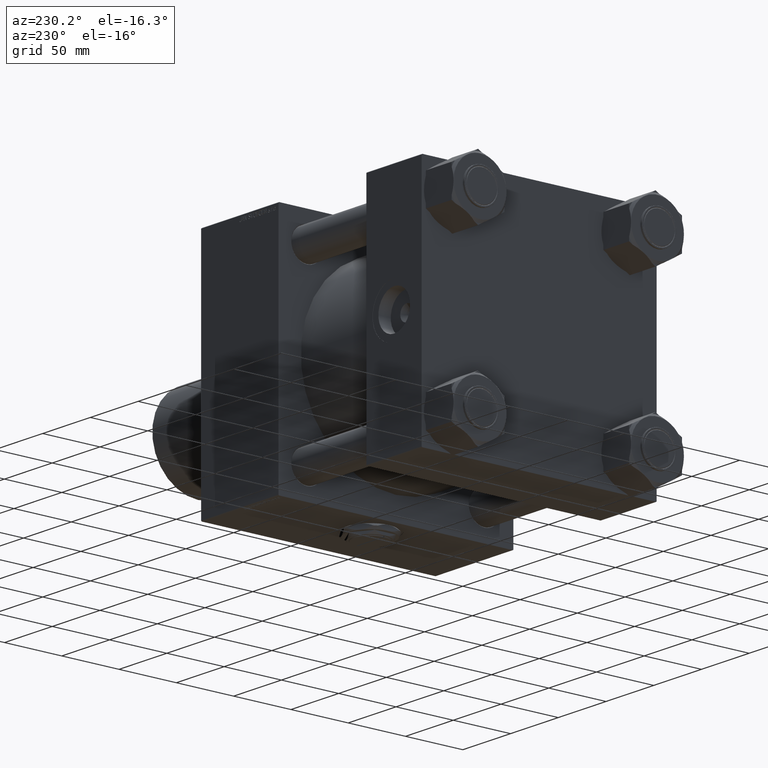
[diagram: clean part render]
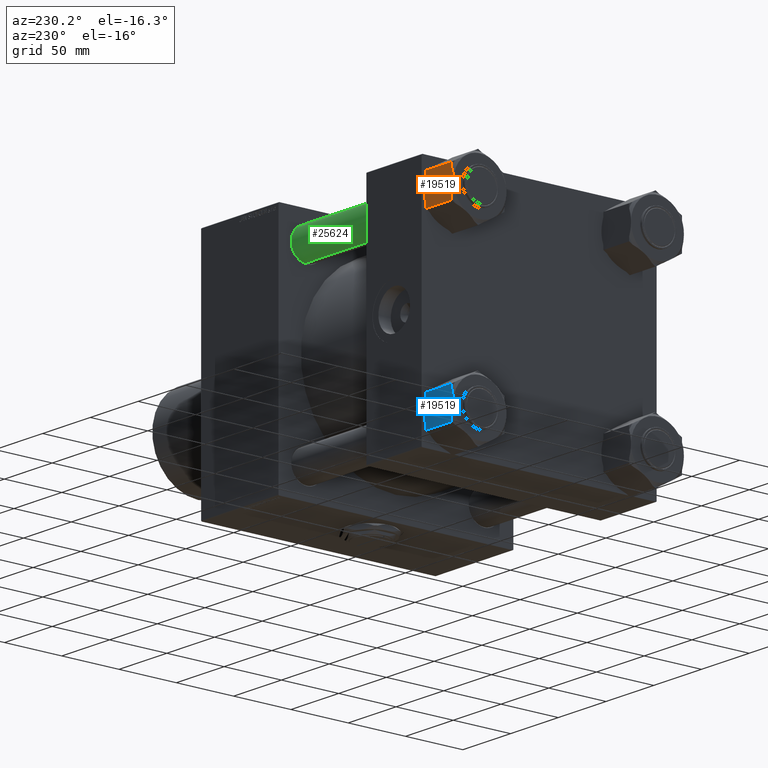
[diagram: same view with three faces highlighted in distinct colors, each labeled with its STEP entity id]
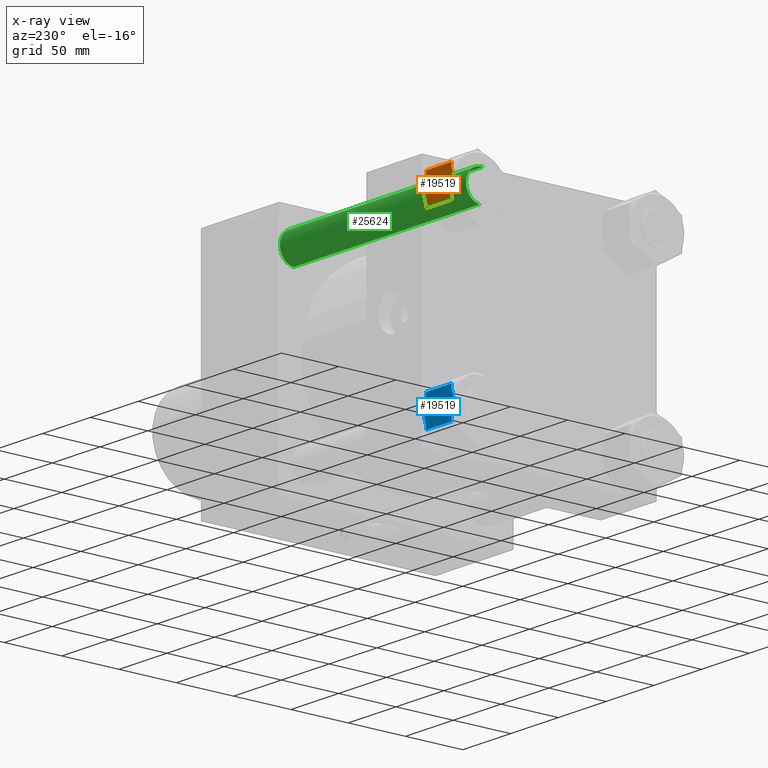
[diagram: x-ray of the same camera — body ghosted, the three highlighted faces saturated]
A machine part, auxiliary view with three faces highlighted in distinct colors.
The next image is the same camera in x-ray (body ghosted, the three faces saturated) — at least one of them is partly hidden behind the body in this view.
Their STEP definitions:

[orange] entity #19519 — the highlighted planar face has unit normal (0, -1, -0).
#576 = B_SPLINE_CURVE_WITH_KNOTS ( 'NONE', 3,
 ( #3452, #28605, #24027, #3717, #36391, #7463, #12014, #24303, #52742, #7196 ),
 .UNSPECIFIED., .F., .F.,
 ( 4, 2, 2, 2, 4 ),
 ( 0.04709422404877768031, 0.04834823400549315836, 0.04960224396220863641, 0.05211026387563959944, 0.05712630370250151163 ),
 .UNSPECIFIED. ) ;
#780 = EDGE_CURVE ( 'NONE', #37556, #4427, #33960, .T. ) ;
#2398 = CARTESIAN_POINT ( 'NONE',  ( -9.808893158505055609, 23.05359624874177271, -2.000000000000000000 ) ) ;
#2574 = CARTESIAN_POINT ( 'NONE',  ( 5.801497649255006550, 23.05359624874177271, -0.7053567131665720025 ) ) ;
#3359 = CARTESIAN_POINT ( 'NONE',  ( 9.024432966208889795, 23.05359624874177626, -1.692870989979337271 ) ) ;
#3452 = CARTESIAN_POINT ( 'NONE',  ( 0.000000000000000000, 23.05359624874177271, 0.000000000000000000 ) ) ;
#3629 = CARTESIAN_POINT ( 'NONE',  ( 9.808893158505055609, 23.05359624874177271, -2.000000000000000000 ) ) ;
#3717 = CARTESIAN_POINT ( 'NONE',  ( -1.693046291327859665, 23.05359624874176561, -0.05822588947894232619 ) ) ;
#4427 = VERTEX_POINT ( 'NONE', #51171 ) ;
#4522 = CARTESIAN_POINT ( 'NONE',  ( 13.31000000000000405, 23.05359624874177271, -31.00000000000000000 ) ) ;
#4757 = B_SPLINE_CURVE_WITH_KNOTS ( 'NONE', 3,
 ( #17545, #22057, #38179, #25562, #6017, #26097, #33886, #13516 ),
 .UNSPECIFIED., .F., .F.,
 ( 4, 2, 2, 4 ),
 ( 0.03704433557245612185, 0.03955680769153650800, 0.04206927981061689414, 0.04709422404877766644 ),
 .UNSPECIFIED. ) ;
#5069 = ORIENTED_EDGE ( 'NONE', *, *, #19174, .F. ) ;
#5133 = CARTESIAN_POINT ( 'NONE',  ( 0.4218342054646818662, 23.05359624874177271, -30.99999999999999645 ) ) ;
#6017 = CARTESIAN_POINT ( 'NONE',  ( -5.801497649255016320, 23.05359624874177271, -30.29464328683341989 ) ) ;
#7196 = CARTESIAN_POINT ( 'NONE',  ( -9.808893158505055609, 23.05359624874177271, -2.000000000000000000 ) ) ;
#7463 = CARTESIAN_POINT ( 'NONE',  ( -3.366747807636247813, 23.05359624874176561, -0.2297327368970412120 ) ) ;
#7648 = CARTESIAN_POINT ( 'NONE',  ( -13.30999999999999872, 23.05359624874177271, -28.99999999999999645 ) ) ;
#7890 = VERTEX_POINT ( 'NONE', #41000 ) ;
#8043 = VECTOR ( 'NONE', #43380, 1000.000000000000000 ) ;
#8102 = CARTESIAN_POINT ( 'NONE',  ( 1.693046291327858999, 23.05359624874176916, -30.94177411052105597 ) ) ;
#8176 = VERTEX_POINT ( 'NONE', #2398 ) ;
#8266 = DIRECTION ( 'NONE',  ( -0.000000000000000000, -0.000000000000000000, 1.000000000000000000 ) ) ;
#8875 = AXIS2_PLACEMENT_3D ( 'NONE', #30916, #18594, #35475 ) ;
#8986 = ORIENTED_EDGE ( 'NONE', *, *, #780, .F. ) ;
#9307 = CARTESIAN_POINT ( 'NONE',  ( -13.30999999999999872, 23.05359624874177271, -2.000000000000001776 ) ) ;
#9870 = VECTOR ( 'NONE', #8266, 1000.000000000000000 ) ;
#10158 = CARTESIAN_POINT ( 'NONE',  ( -13.30999999999999872, 23.05359624874177271, -2.000000000000001776 ) ) ;
#12014 = CARTESIAN_POINT ( 'NONE',  ( -4.192182187841015484, 23.05359624874176916, -0.3644771254818151562 ) ) ;
#12415 = CARTESIAN_POINT ( 'NONE',  ( 13.31000000000000227, 23.05359624874177271, -28.99999999999999645 ) ) ;
#12619 = CARTESIAN_POINT ( 'NONE',  ( 0.000000000000000000, 23.05359624874177271, 0.000000000000000000 ) ) ;
#13406 = CARTESIAN_POINT ( 'NONE',  ( -13.30999999999999872, 23.05359624874177271, -31.00000000000000000 ) ) ;
#13516 = CARTESIAN_POINT ( 'NONE',  ( 0.000000000000000000, 23.05359624874177271, -31.00000000000000000 ) ) ;
#14078 = VECTOR ( 'NONE', #51637, 1000.000000000000000 ) ;
#15171 = LINE ( 'NONE', #35284, #14078 ) ;
#16294 = LINE ( 'NONE', #4522, #9870 ) ;
#16766 = VERTEX_POINT ( 'NONE', #28671 ) ;
#17168 = CARTESIAN_POINT ( 'NONE',  ( 6.641506094493674794, 23.05359624874176916, -30.11551404775775254 ) ) ;
#17232 = ORIENTED_EDGE ( 'NONE', *, *, #35717, .F. ) ;
#17430 = VERTEX_POINT ( 'NONE', #31866 ) ;
#17545 = CARTESIAN_POINT ( 'NONE',  ( -9.808893158505068044, 23.05359624874177271, -28.99999999999999645 ) ) ;
#17949 = CARTESIAN_POINT ( 'NONE',  ( -13.30999999999999872, 23.05359624874177271, -28.99999999999999645 ) ) ;
#18594 = DIRECTION ( 'NONE',  ( 0.000000000000000000, -1.000000000000000000, 0.000000000000000000 ) ) ;
#18870 = CARTESIAN_POINT ( 'NONE',  ( 0.000000000000000000, 23.05359624874177271, 0.000000000000000000 ) ) ;
#19174 = EDGE_CURVE ( 'NONE', #8176, #37924, #31300, .T. ) ;
#19519 = ADVANCED_FACE ( 'NONE', ( #23117 ), #34423, .F. ) ;
#19564 = VECTOR ( 'NONE', #31637, 1000.000000000000000 ) ;
#19649 = CARTESIAN_POINT ( 'NONE',  ( 8.222377524857016340, 23.05359624874177271, -1.410427084452076096 ) ) ;
#19983 = EDGE_LOOP ( 'NONE', ( #17232, #39176, #5069, #30615, #48202, #26994, #28184, #41860, #8986, #25969 ) ) ;
#20118 = VERTEX_POINT ( 'NONE', #12619 ) ;
#20455 = EDGE_CURVE ( 'NONE', #17430, #16766, #15171, .T. ) ;
#21411 = LINE ( 'NONE', #17949, #44210 ) ;
#22057 = CARTESIAN_POINT ( 'NONE',  ( -9.024432966208907558, 23.05359624874177982, -29.30712901002065962 ) ) ;
#22134 = EDGE_CURVE ( 'NONE', #7890, #37556, #4757, .T. ) ;
#22150 = VECTOR ( 'NONE', #41823, 1000.000000000000000 ) ;
#22494 = EDGE_CURVE ( 'NONE', #37030, #17430, #16294, .T. ) ;
#23117 = FACE_OUTER_BOUND ( 'NONE', #19983, .T. ) ;
#24027 = CARTESIAN_POINT ( 'NONE',  ( -0.8470567002417573876, 23.05359624874177271, -0.01168982920650373826 ) ) ;
#24303 = CARTESIAN_POINT ( 'NONE',  ( -6.641506094493657919, 23.05359624874177271, -0.8844859522422369169 ) ) ;
#24755 = VERTEX_POINT ( 'NONE', #7648 ) ;
#25562 = CARTESIAN_POINT ( 'NONE',  ( -6.612214801278789800, 23.05359624874177626, -30.08273205772793446 ) ) ;
#25969 = ORIENTED_EDGE ( 'NONE', *, *, #22134, .F. ) ;
#26097 = CARTESIAN_POINT ( 'NONE',  ( -3.350210548520259124, 23.05359624874177271, -30.81266480856789158 ) ) ;
#26554 = CARTESIAN_POINT ( 'NONE',  ( -13.30999999999999872, 23.05359624874177271, -28.99999999999999645 ) ) ;
#26994 = ORIENTED_EDGE ( 'NONE', *, *, #20455, .F. ) ;
#28184 = ORIENTED_EDGE ( 'NONE', *, *, #22494, .F. ) ;
#28605 = CARTESIAN_POINT ( 'NONE',  ( -0.4218342054646835870, 23.05359624874177271, 4.573977915173220598E-17 ) ) ;
#28671 = CARTESIAN_POINT ( 'NONE',  ( 9.808893158505055609, 23.05359624874177271, -2.000000000000000000 ) ) ;
#30615 = ORIENTED_EDGE ( 'NONE', *, *, #37667, .F. ) ;
#30916 = CARTESIAN_POINT ( 'NONE',  ( -13.30999999999999872, 23.05359624874177271, -31.00000000000000000 ) ) ;
#30975 = EDGE_CURVE ( 'NONE', #4427, #37030, #21411, .T. ) ;
#31300 = LINE ( 'NONE', #10158, #8043 ) ;
#31637 = DIRECTION ( 'NONE',  ( 1.000000000000000000, 0.000000000000000000, 0.000000000000000000 ) ) ;
#31866 = CARTESIAN_POINT ( 'NONE',  ( 13.31000000000000227, 23.05359624874177271, -2.000000000000001776 ) ) ;
#32005 = CARTESIAN_POINT ( 'NONE',  ( 3.350210548520252907, 23.05359624874177626, -0.1873351914320967315 ) ) ;
#33518 = CARTESIAN_POINT ( 'NONE',  ( 2.113373616412101530, 23.05359624874177626, -30.90705919660666723 ) ) ;
#33782 = CARTESIAN_POINT ( 'NONE',  ( 0.8470567002417541680, 23.05359624874176916, -30.98831017079348982 ) ) ;
#33886 = CARTESIAN_POINT ( 'NONE',  ( -1.690332161126405497, 23.05359624874176561, -30.99999999999998934 ) ) ;
#33960 = B_SPLINE_CURVE_WITH_KNOTS ( 'NONE', 3,
 ( #45069, #5133, #33782, #8102, #33518, #45322, #50145, #17168, #49869, #40781 ),
 .UNSPECIFIED., .F., .F.,
 ( 4, 2, 2, 2, 4 ),
 ( 0.04709422404877766644, 0.04834823400549314448, 0.04960224396220862947, 0.05211026387563958556, 0.05712630370250151163 ),
 .UNSPECIFIED. ) ;
#34423 = PLANE ( 'NONE',  #8875 ) ;
#35284 = CARTESIAN_POINT ( 'NONE',  ( -13.30999999999999872, 23.05359624874177271, -2.000000000000001776 ) ) ;
#35475 = DIRECTION ( 'NONE',  ( 0.000000000000000000, -0.000000000000000000, -1.000000000000000000 ) ) ;
#35717 = EDGE_CURVE ( 'NONE', #24755, #7890, #43716, .T. ) ;
#36298 = CARTESIAN_POINT ( 'NONE',  ( 1.690332161126403276, 23.05359624874177626, -2.439454888092385470E-16 ) ) ;
#36391 = CARTESIAN_POINT ( 'NONE',  ( -2.113373616412097533, 23.05359624874177626, -0.09294080339333840590 ) ) ;
#37030 = VERTEX_POINT ( 'NONE', #12415 ) ;
#37556 = VERTEX_POINT ( 'NONE', #51689 ) ;
#37667 = EDGE_CURVE ( 'NONE', #20118, #8176, #576, .T. ) ;
#37924 = VERTEX_POINT ( 'NONE', #9307 ) ;
#38179 = CARTESIAN_POINT ( 'NONE',  ( -8.222377524857034103, 23.05359624874176916, -29.58957291554791880 ) ) ;
#39176 = ORIENTED_EDGE ( 'NONE', *, *, #43415, .T. ) ;
#40781 = CARTESIAN_POINT ( 'NONE',  ( 9.808893158505068044, 23.05359624874177271, -28.99999999999999645 ) ) ;
#41000 = CARTESIAN_POINT ( 'NONE',  ( -9.808893158505068044, 23.05359624874177271, -28.99999999999999645 ) ) ;
#41823 = DIRECTION ( 'NONE',  ( -0.000000000000000000, -0.000000000000000000, 1.000000000000000000 ) ) ;
#41860 = ORIENTED_EDGE ( 'NONE', *, *, #30975, .F. ) ;
#43380 = DIRECTION ( 'NONE',  ( -1.000000000000000000, 0.000000000000000000, 0.000000000000000000 ) ) ;
#43415 = EDGE_CURVE ( 'NONE', #24755, #37924, #50131, .T. ) ;
#43716 = LINE ( 'NONE', #26554, #19564 ) ;
#44210 = VECTOR ( 'NONE', #46367, 1000.000000000000000 ) ;
#45069 = CARTESIAN_POINT ( 'NONE',  ( 0.000000000000000000, 23.05359624874177271, -31.00000000000000000 ) ) ;
#45322 = CARTESIAN_POINT ( 'NONE',  ( 3.366747807636252698, 23.05359624874176916, -30.77026726310295501 ) ) ;
#46367 = DIRECTION ( 'NONE',  ( 1.000000000000000000, 0.000000000000000000, 0.000000000000000000 ) ) ;
#48202 = ORIENTED_EDGE ( 'NONE', *, *, #49876, .F. ) ;
#49869 = CARTESIAN_POINT ( 'NONE',  ( 8.238500401260303363, 23.05359624874176916, -29.61483447804336677 ) ) ;
#49876 = EDGE_CURVE ( 'NONE', #16766, #20118, #50164, .T. ) ;
#50131 = LINE ( 'NONE', #13406, #22150 ) ;
#50145 = CARTESIAN_POINT ( 'NONE',  ( 4.192182187841027918, 23.05359624874176916, -30.63552287451818046 ) ) ;
#50164 = B_SPLINE_CURVE_WITH_KNOTS ( 'NONE', 3,
 ( #3629, #3359, #19649, #52378, #2574, #32005, #36298, #18870 ),
 .UNSPECIFIED., .F., .F.,
 ( 4, 2, 2, 4 ),
 ( 0.03704433557245614961, 0.03955680769153653575, 0.04206927981061691496, 0.04709422404877768031 ),
 .UNSPECIFIED. ) ;
#51171 = CARTESIAN_POINT ( 'NONE',  ( 9.808893158505068044, 23.05359624874177271, -28.99999999999999645 ) ) ;
#51637 = DIRECTION ( 'NONE',  ( -1.000000000000000000, 0.000000000000000000, 0.000000000000000000 ) ) ;
#51689 = CARTESIAN_POINT ( 'NONE',  ( 0.000000000000000000, 23.05359624874177271, -31.00000000000000000 ) ) ;
#52378 = CARTESIAN_POINT ( 'NONE',  ( 6.612214801278774701, 23.05359624874176916, -0.9172679422720635412 ) ) ;
#52742 = CARTESIAN_POINT ( 'NONE',  ( -8.238500401260287376, 23.05359624874176561, -1.385165521956633006 ) ) ;

[blue] entity #19519 — the highlighted planar face has unit normal (0, -1, 0).
#576 = B_SPLINE_CURVE_WITH_KNOTS ( 'NONE', 3,
 ( #3452, #28605, #24027, #3717, #36391, #7463, #12014, #24303, #52742, #7196 ),
 .UNSPECIFIED., .F., .F.,
 ( 4, 2, 2, 2, 4 ),
 ( 0.04709422404877768031, 0.04834823400549315836, 0.04960224396220863641, 0.05211026387563959944, 0.05712630370250151163 ),
 .UNSPECIFIED. ) ;
#780 = EDGE_CURVE ( 'NONE', #37556, #4427, #33960, .T. ) ;
#2398 = CARTESIAN_POINT ( 'NONE',  ( -9.808893158505055609, 23.05359624874177271, -2.000000000000000000 ) ) ;
#2574 = CARTESIAN_POINT ( 'NONE',  ( 5.801497649255006550, 23.05359624874177271, -0.7053567131665720025 ) ) ;
#3359 = CARTESIAN_POINT ( 'NONE',  ( 9.024432966208889795, 23.05359624874177626, -1.692870989979337271 ) ) ;
#3452 = CARTESIAN_POINT ( 'NONE',  ( 0.000000000000000000, 23.05359624874177271, 0.000000000000000000 ) ) ;
#3629 = CARTESIAN_POINT ( 'NONE',  ( 9.808893158505055609, 23.05359624874177271, -2.000000000000000000 ) ) ;
#3717 = CARTESIAN_POINT ( 'NONE',  ( -1.693046291327859665, 23.05359624874176561, -0.05822588947894232619 ) ) ;
#4427 = VERTEX_POINT ( 'NONE', #51171 ) ;
#4522 = CARTESIAN_POINT ( 'NONE',  ( 13.31000000000000405, 23.05359624874177271, -31.00000000000000000 ) ) ;
#4757 = B_SPLINE_CURVE_WITH_KNOTS ( 'NONE', 3,
 ( #17545, #22057, #38179, #25562, #6017, #26097, #33886, #13516 ),
 .UNSPECIFIED., .F., .F.,
 ( 4, 2, 2, 4 ),
 ( 0.03704433557245612185, 0.03955680769153650800, 0.04206927981061689414, 0.04709422404877766644 ),
 .UNSPECIFIED. ) ;
#5069 = ORIENTED_EDGE ( 'NONE', *, *, #19174, .F. ) ;
#5133 = CARTESIAN_POINT ( 'NONE',  ( 0.4218342054646818662, 23.05359624874177271, -30.99999999999999645 ) ) ;
#6017 = CARTESIAN_POINT ( 'NONE',  ( -5.801497649255016320, 23.05359624874177271, -30.29464328683341989 ) ) ;
#7196 = CARTESIAN_POINT ( 'NONE',  ( -9.808893158505055609, 23.05359624874177271, -2.000000000000000000 ) ) ;
#7463 = CARTESIAN_POINT ( 'NONE',  ( -3.366747807636247813, 23.05359624874176561, -0.2297327368970412120 ) ) ;
#7648 = CARTESIAN_POINT ( 'NONE',  ( -13.30999999999999872, 23.05359624874177271, -28.99999999999999645 ) ) ;
#7890 = VERTEX_POINT ( 'NONE', #41000 ) ;
#8043 = VECTOR ( 'NONE', #43380, 1000.000000000000000 ) ;
#8102 = CARTESIAN_POINT ( 'NONE',  ( 1.693046291327858999, 23.05359624874176916, -30.94177411052105597 ) ) ;
#8176 = VERTEX_POINT ( 'NONE', #2398 ) ;
#8266 = DIRECTION ( 'NONE',  ( -0.000000000000000000, -0.000000000000000000, 1.000000000000000000 ) ) ;
#8875 = AXIS2_PLACEMENT_3D ( 'NONE', #30916, #18594, #35475 ) ;
#8986 = ORIENTED_EDGE ( 'NONE', *, *, #780, .F. ) ;
#9307 = CARTESIAN_POINT ( 'NONE',  ( -13.30999999999999872, 23.05359624874177271, -2.000000000000001776 ) ) ;
#9870 = VECTOR ( 'NONE', #8266, 1000.000000000000000 ) ;
#10158 = CARTESIAN_POINT ( 'NONE',  ( -13.30999999999999872, 23.05359624874177271, -2.000000000000001776 ) ) ;
#12014 = CARTESIAN_POINT ( 'NONE',  ( -4.192182187841015484, 23.05359624874176916, -0.3644771254818151562 ) ) ;
#12415 = CARTESIAN_POINT ( 'NONE',  ( 13.31000000000000227, 23.05359624874177271, -28.99999999999999645 ) ) ;
#12619 = CARTESIAN_POINT ( 'NONE',  ( 0.000000000000000000, 23.05359624874177271, 0.000000000000000000 ) ) ;
#13406 = CARTESIAN_POINT ( 'NONE',  ( -13.30999999999999872, 23.05359624874177271, -31.00000000000000000 ) ) ;
#13516 = CARTESIAN_POINT ( 'NONE',  ( 0.000000000000000000, 23.05359624874177271, -31.00000000000000000 ) ) ;
#14078 = VECTOR ( 'NONE', #51637, 1000.000000000000000 ) ;
#15171 = LINE ( 'NONE', #35284, #14078 ) ;
#16294 = LINE ( 'NONE', #4522, #9870 ) ;
#16766 = VERTEX_POINT ( 'NONE', #28671 ) ;
#17168 = CARTESIAN_POINT ( 'NONE',  ( 6.641506094493674794, 23.05359624874176916, -30.11551404775775254 ) ) ;
#17232 = ORIENTED_EDGE ( 'NONE', *, *, #35717, .F. ) ;
#17430 = VERTEX_POINT ( 'NONE', #31866 ) ;
#17545 = CARTESIAN_POINT ( 'NONE',  ( -9.808893158505068044, 23.05359624874177271, -28.99999999999999645 ) ) ;
#17949 = CARTESIAN_POINT ( 'NONE',  ( -13.30999999999999872, 23.05359624874177271, -28.99999999999999645 ) ) ;
#18594 = DIRECTION ( 'NONE',  ( 0.000000000000000000, -1.000000000000000000, 0.000000000000000000 ) ) ;
#18870 = CARTESIAN_POINT ( 'NONE',  ( 0.000000000000000000, 23.05359624874177271, 0.000000000000000000 ) ) ;
#19174 = EDGE_CURVE ( 'NONE', #8176, #37924, #31300, .T. ) ;
#19519 = ADVANCED_FACE ( 'NONE', ( #23117 ), #34423, .F. ) ;
#19564 = VECTOR ( 'NONE', #31637, 1000.000000000000000 ) ;
#19649 = CARTESIAN_POINT ( 'NONE',  ( 8.222377524857016340, 23.05359624874177271, -1.410427084452076096 ) ) ;
#19983 = EDGE_LOOP ( 'NONE', ( #17232, #39176, #5069, #30615, #48202, #26994, #28184, #41860, #8986, #25969 ) ) ;
#20118 = VERTEX_POINT ( 'NONE', #12619 ) ;
#20455 = EDGE_CURVE ( 'NONE', #17430, #16766, #15171, .T. ) ;
#21411 = LINE ( 'NONE', #17949, #44210 ) ;
#22057 = CARTESIAN_POINT ( 'NONE',  ( -9.024432966208907558, 23.05359624874177982, -29.30712901002065962 ) ) ;
#22134 = EDGE_CURVE ( 'NONE', #7890, #37556, #4757, .T. ) ;
#22150 = VECTOR ( 'NONE', #41823, 1000.000000000000000 ) ;
#22494 = EDGE_CURVE ( 'NONE', #37030, #17430, #16294, .T. ) ;
#23117 = FACE_OUTER_BOUND ( 'NONE', #19983, .T. ) ;
#24027 = CARTESIAN_POINT ( 'NONE',  ( -0.8470567002417573876, 23.05359624874177271, -0.01168982920650373826 ) ) ;
#24303 = CARTESIAN_POINT ( 'NONE',  ( -6.641506094493657919, 23.05359624874177271, -0.8844859522422369169 ) ) ;
#24755 = VERTEX_POINT ( 'NONE', #7648 ) ;
#25562 = CARTESIAN_POINT ( 'NONE',  ( -6.612214801278789800, 23.05359624874177626, -30.08273205772793446 ) ) ;
#25969 = ORIENTED_EDGE ( 'NONE', *, *, #22134, .F. ) ;
#26097 = CARTESIAN_POINT ( 'NONE',  ( -3.350210548520259124, 23.05359624874177271, -30.81266480856789158 ) ) ;
#26554 = CARTESIAN_POINT ( 'NONE',  ( -13.30999999999999872, 23.05359624874177271, -28.99999999999999645 ) ) ;
#26994 = ORIENTED_EDGE ( 'NONE', *, *, #20455, .F. ) ;
#28184 = ORIENTED_EDGE ( 'NONE', *, *, #22494, .F. ) ;
#28605 = CARTESIAN_POINT ( 'NONE',  ( -0.4218342054646835870, 23.05359624874177271, 4.573977915173220598E-17 ) ) ;
#28671 = CARTESIAN_POINT ( 'NONE',  ( 9.808893158505055609, 23.05359624874177271, -2.000000000000000000 ) ) ;
#30615 = ORIENTED_EDGE ( 'NONE', *, *, #37667, .F. ) ;
#30916 = CARTESIAN_POINT ( 'NONE',  ( -13.30999999999999872, 23.05359624874177271, -31.00000000000000000 ) ) ;
#30975 = EDGE_CURVE ( 'NONE', #4427, #37030, #21411, .T. ) ;
#31300 = LINE ( 'NONE', #10158, #8043 ) ;
#31637 = DIRECTION ( 'NONE',  ( 1.000000000000000000, 0.000000000000000000, 0.000000000000000000 ) ) ;
#31866 = CARTESIAN_POINT ( 'NONE',  ( 13.31000000000000227, 23.05359624874177271, -2.000000000000001776 ) ) ;
#32005 = CARTESIAN_POINT ( 'NONE',  ( 3.350210548520252907, 23.05359624874177626, -0.1873351914320967315 ) ) ;
#33518 = CARTESIAN_POINT ( 'NONE',  ( 2.113373616412101530, 23.05359624874177626, -30.90705919660666723 ) ) ;
#33782 = CARTESIAN_POINT ( 'NONE',  ( 0.8470567002417541680, 23.05359624874176916, -30.98831017079348982 ) ) ;
#33886 = CARTESIAN_POINT ( 'NONE',  ( -1.690332161126405497, 23.05359624874176561, -30.99999999999998934 ) ) ;
#33960 = B_SPLINE_CURVE_WITH_KNOTS ( 'NONE', 3,
 ( #45069, #5133, #33782, #8102, #33518, #45322, #50145, #17168, #49869, #40781 ),
 .UNSPECIFIED., .F., .F.,
 ( 4, 2, 2, 2, 4 ),
 ( 0.04709422404877766644, 0.04834823400549314448, 0.04960224396220862947, 0.05211026387563958556, 0.05712630370250151163 ),
 .UNSPECIFIED. ) ;
#34423 = PLANE ( 'NONE',  #8875 ) ;
#35284 = CARTESIAN_POINT ( 'NONE',  ( -13.30999999999999872, 23.05359624874177271, -2.000000000000001776 ) ) ;
#35475 = DIRECTION ( 'NONE',  ( 0.000000000000000000, -0.000000000000000000, -1.000000000000000000 ) ) ;
#35717 = EDGE_CURVE ( 'NONE', #24755, #7890, #43716, .T. ) ;
#36298 = CARTESIAN_POINT ( 'NONE',  ( 1.690332161126403276, 23.05359624874177626, -2.439454888092385470E-16 ) ) ;
#36391 = CARTESIAN_POINT ( 'NONE',  ( -2.113373616412097533, 23.05359624874177626, -0.09294080339333840590 ) ) ;
#37030 = VERTEX_POINT ( 'NONE', #12415 ) ;
#37556 = VERTEX_POINT ( 'NONE', #51689 ) ;
#37667 = EDGE_CURVE ( 'NONE', #20118, #8176, #576, .T. ) ;
#37924 = VERTEX_POINT ( 'NONE', #9307 ) ;
#38179 = CARTESIAN_POINT ( 'NONE',  ( -8.222377524857034103, 23.05359624874176916, -29.58957291554791880 ) ) ;
#39176 = ORIENTED_EDGE ( 'NONE', *, *, #43415, .T. ) ;
#40781 = CARTESIAN_POINT ( 'NONE',  ( 9.808893158505068044, 23.05359624874177271, -28.99999999999999645 ) ) ;
#41000 = CARTESIAN_POINT ( 'NONE',  ( -9.808893158505068044, 23.05359624874177271, -28.99999999999999645 ) ) ;
#41823 = DIRECTION ( 'NONE',  ( -0.000000000000000000, -0.000000000000000000, 1.000000000000000000 ) ) ;
#41860 = ORIENTED_EDGE ( 'NONE', *, *, #30975, .F. ) ;
#43380 = DIRECTION ( 'NONE',  ( -1.000000000000000000, 0.000000000000000000, 0.000000000000000000 ) ) ;
#43415 = EDGE_CURVE ( 'NONE', #24755, #37924, #50131, .T. ) ;
#43716 = LINE ( 'NONE', #26554, #19564 ) ;
#44210 = VECTOR ( 'NONE', #46367, 1000.000000000000000 ) ;
#45069 = CARTESIAN_POINT ( 'NONE',  ( 0.000000000000000000, 23.05359624874177271, -31.00000000000000000 ) ) ;
#45322 = CARTESIAN_POINT ( 'NONE',  ( 3.366747807636252698, 23.05359624874176916, -30.77026726310295501 ) ) ;
#46367 = DIRECTION ( 'NONE',  ( 1.000000000000000000, 0.000000000000000000, 0.000000000000000000 ) ) ;
#48202 = ORIENTED_EDGE ( 'NONE', *, *, #49876, .F. ) ;
#49869 = CARTESIAN_POINT ( 'NONE',  ( 8.238500401260303363, 23.05359624874176916, -29.61483447804336677 ) ) ;
#49876 = EDGE_CURVE ( 'NONE', #16766, #20118, #50164, .T. ) ;
#50131 = LINE ( 'NONE', #13406, #22150 ) ;
#50145 = CARTESIAN_POINT ( 'NONE',  ( 4.192182187841027918, 23.05359624874176916, -30.63552287451818046 ) ) ;
#50164 = B_SPLINE_CURVE_WITH_KNOTS ( 'NONE', 3,
 ( #3629, #3359, #19649, #52378, #2574, #32005, #36298, #18870 ),
 .UNSPECIFIED., .F., .F.,
 ( 4, 2, 2, 4 ),
 ( 0.03704433557245614961, 0.03955680769153653575, 0.04206927981061691496, 0.04709422404877768031 ),
 .UNSPECIFIED. ) ;
#51171 = CARTESIAN_POINT ( 'NONE',  ( 9.808893158505068044, 23.05359624874177271, -28.99999999999999645 ) ) ;
#51637 = DIRECTION ( 'NONE',  ( -1.000000000000000000, 0.000000000000000000, 0.000000000000000000 ) ) ;
#51689 = CARTESIAN_POINT ( 'NONE',  ( 0.000000000000000000, 23.05359624874177271, -31.00000000000000000 ) ) ;
#52378 = CARTESIAN_POINT ( 'NONE',  ( 6.612214801278774701, 23.05359624874176916, -0.9172679422720635412 ) ) ;
#52742 = CARTESIAN_POINT ( 'NONE',  ( -8.238500401260287376, 23.05359624874176561, -1.385165521956633006 ) ) ;

[green] entity #25624 — the highlighted cylindrical surface (edge-blend (fillet) strip) has radius 13.5 mm, axis along (-1, 0, 0).
#1878 = DIRECTION ( 'NONE',  ( -1.000000000000000000, 0.000000000000000000, 0.000000000000000000 ) ) ;
#2020 = EDGE_LOOP ( 'NONE', ( #43403, #19182, #8719, #37262 ) ) ;
#8719 = ORIENTED_EDGE ( 'NONE', *, *, #47934, .T. ) ;
#9423 = CARTESIAN_POINT ( 'NONE',  ( -13.50000000000000000, 0.000000000000000000, 196.0000000000000000 ) ) ;
#9904 = CYLINDRICAL_SURFACE ( 'NONE', #17550, 13.50000000000000000 ) ;
#10965 = CARTESIAN_POINT ( 'NONE',  ( -13.50000000000000000, 0.000000000000000000, 0.4999999999999726885 ) ) ;
#11074 = CARTESIAN_POINT ( 'NONE',  ( 0.000000000000000000, 0.000000000000000000, 195.5000000000000284 ) ) ;
#12655 = LINE ( 'NONE', #9423, #28441 ) ;
#12931 = CIRCLE ( 'NONE', #36916, 13.50000000000000000 ) ;
#15698 = EDGE_CURVE ( 'NONE', #22703, #43596, #12655, .T. ) ;
#17550 = AXIS2_PLACEMENT_3D ( 'NONE', #37767, #50631, #1878 ) ;
#17653 = CIRCLE ( 'NONE', #39041, 13.50000000000000000 ) ;
#18854 = CARTESIAN_POINT ( 'NONE',  ( 0.000000000000000000, 0.000000000000000000, 0.4999999999999726885 ) ) ;
#19182 = ORIENTED_EDGE ( 'NONE', *, *, #39108, .T. ) ;
#22628 = VERTEX_POINT ( 'NONE', #26686 ) ;
#22703 = VERTEX_POINT ( 'NONE', #51881 ) ;
#25624 = ADVANCED_FACE ( 'NONE', ( #37507 ), #9904, .T. ) ;
#25786 = LINE ( 'NONE', #42173, #38424 ) ;
#26686 = CARTESIAN_POINT ( 'NONE',  ( 13.50000000000000000, 1.653273178848926867E-15, 0.4999999999999726885 ) ) ;
#28441 = VECTOR ( 'NONE', #49632, 1000.000000000000000 ) ;
#29335 = VERTEX_POINT ( 'NONE', #31426 ) ;
#29418 = EDGE_CURVE ( 'NONE', #22703, #29335, #17653, .T. ) ;
#30924 = DIRECTION ( 'NONE',  ( 1.000000000000000000, 0.000000000000000000, 0.000000000000000000 ) ) ;
#31426 = CARTESIAN_POINT ( 'NONE',  ( 13.50000000000000000, 1.653273178848926867E-15, 195.5000000000000284 ) ) ;
#36916 = AXIS2_PLACEMENT_3D ( 'NONE', #18854, #39771, #30924 ) ;
#37262 = ORIENTED_EDGE ( 'NONE', *, *, #15698, .F. ) ;
#37507 = FACE_OUTER_BOUND ( 'NONE', #2020, .T. ) ;
#37767 = CARTESIAN_POINT ( 'NONE',  ( 0.000000000000000000, 0.000000000000000000, 196.0000000000000000 ) ) ;
#38424 = VECTOR ( 'NONE', #50470, 1000.000000000000000 ) ;
#39041 = AXIS2_PLACEMENT_3D ( 'NONE', #11074, #40274, #39745 ) ;
#39108 = EDGE_CURVE ( 'NONE', #29335, #22628, #25786, .T. ) ;
#39745 = DIRECTION ( 'NONE',  ( 1.000000000000000000, 0.000000000000000000, 0.000000000000000000 ) ) ;
#39771 = DIRECTION ( 'NONE',  ( -0.000000000000000000, -0.000000000000000000, 1.000000000000000000 ) ) ;
#40274 = DIRECTION ( 'NONE',  ( 0.000000000000000000, 0.000000000000000000, -1.000000000000000000 ) ) ;
#42173 = CARTESIAN_POINT ( 'NONE',  ( 13.50000000000000000, 1.653273178848926867E-15, 196.0000000000000000 ) ) ;
#43403 = ORIENTED_EDGE ( 'NONE', *, *, #29418, .T. ) ;
#43596 = VERTEX_POINT ( 'NONE', #10965 ) ;
#47934 = EDGE_CURVE ( 'NONE', #22628, #43596, #12931, .T. ) ;
#49632 = DIRECTION ( 'NONE',  ( -0.000000000000000000, -0.000000000000000000, -1.000000000000000000 ) ) ;
#50470 = DIRECTION ( 'NONE',  ( -0.000000000000000000, -0.000000000000000000, -1.000000000000000000 ) ) ;
#50631 = DIRECTION ( 'NONE',  ( -0.000000000000000000, -0.000000000000000000, -1.000000000000000000 ) ) ;
#51881 = CARTESIAN_POINT ( 'NONE',  ( -13.50000000000000000, 0.000000000000000000, 195.5000000000000284 ) ) ;